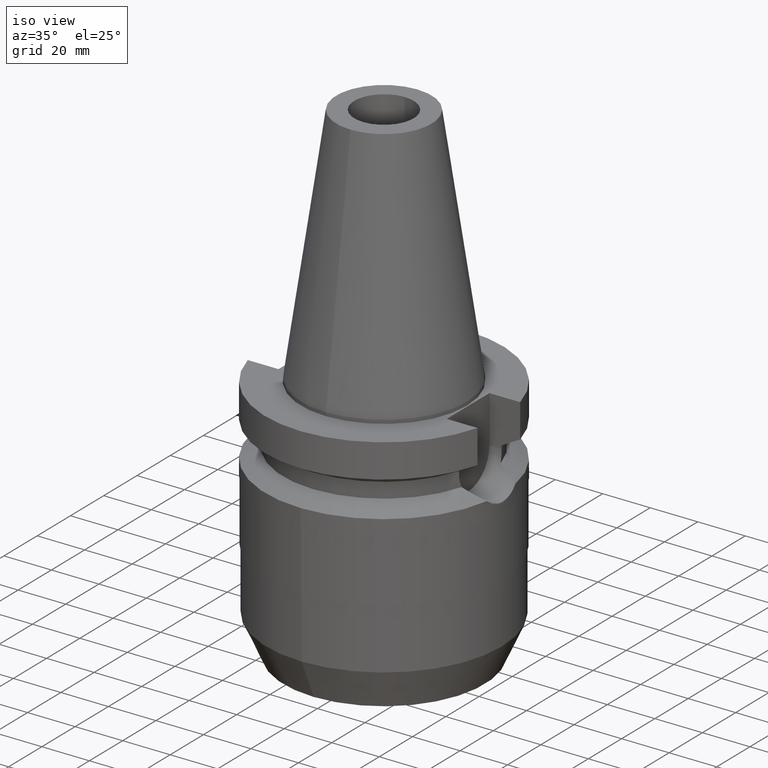
[diagram: clean part render]
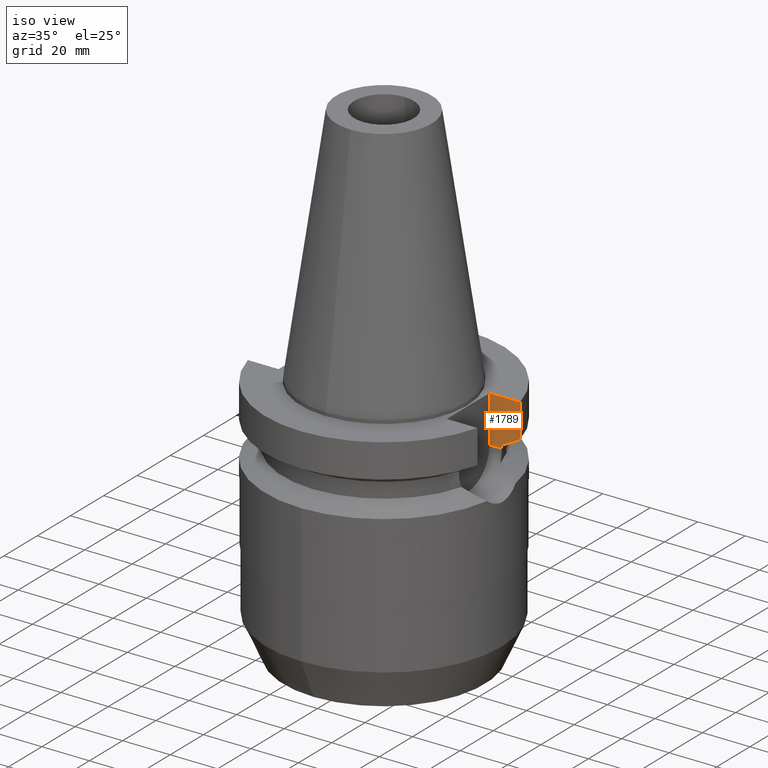
[diagram: same view with one face highlighted and labeled with its STEP entity id]
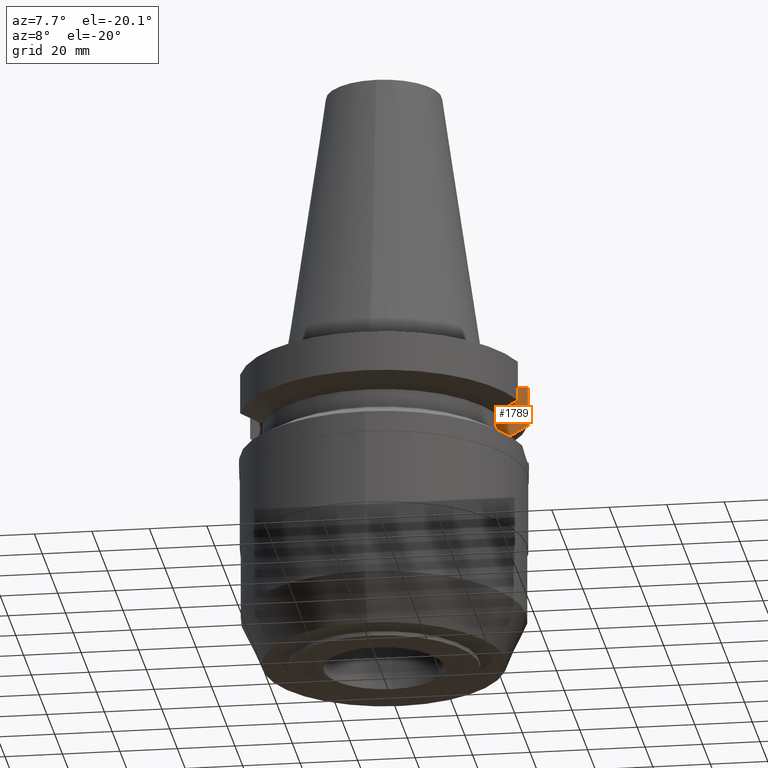
[diagram: same view with one face highlighted and labeled with its STEP entity id]
A machine part, iso view. The second image highlights one B-rep face of the part: STEP entity #1789.
A second angle (auxiliary view) of the same face is appended — the face is thin or edge-on in the first view.
In plain terms, the highlighted planar face has unit normal (0, 1, 0).
Its self-contained STEP definition (entity closure, byte-faithful):
#482=DIRECTION('',(1.E0,-3.336643826790E-14,0.E0));
#483=VECTOR('',#482,5.110831884819E0);
#484=CARTESIAN_POINT('',(3.54E1,1.285E1,-2.115E1));
#485=LINE('',#484,#483);
#650=DIRECTION('',(9.467253418202E-7,-2.984643083131E-6,9.999999999951E-1));
#651=VECTOR('',#650,1.157154240664E0);
#652=CARTESIAN_POINT('',(4.051083188482E1,1.285E1,-2.115E1));
#653=LINE('',#652,#651);
#664=DIRECTION('',(1.E0,0.E0,0.E0));
#665=VECTOR('',#664,1.292057015392E1);
#666=CARTESIAN_POINT('',(3.54E1,1.285E1,-1.5E0));
#667=LINE('',#666,#665);
#671=CARTESIAN_POINT('',(4.832056912893E1,1.285000385432E1,-1.566265770903E1));
#672=CARTESIAN_POINT('',(4.745408731076E1,1.285000385432E1,-1.614611803981E1));
#673=CARTESIAN_POINT('',(4.572064990177E1,1.284999774082E1,-1.711204784283E1));
#674=CARTESIAN_POINT('',(4.311729580085E1,1.285000212563E1,-1.855526397806E1));
#675=CARTESIAN_POINT('',(4.138011681530E1,1.284999654631E1,-1.951445449246E1));
#676=CARTESIAN_POINT('',(4.051083298033E1,1.284999654631E1,-1.999284575934E1));
#681=DIRECTION('',(0.E0,0.E0,-1.E0));
#682=VECTOR('',#681,1.965E1);
#683=CARTESIAN_POINT('',(3.54E1,1.285E1,-1.5E0));
#684=LINE('',#683,#682);
#973=DIRECTION('',(7.237268249751E-8,-2.721468467459E-7,1.E0));
#974=VECTOR('',#973,1.416265770903E1);
#975=CARTESIAN_POINT('',(4.832056912893E1,1.285000385432E1,-1.566265770903E1));
#976=LINE('',#975,#974);
#1145=CARTESIAN_POINT('',(3.54E1,1.285E1,-2.115E1));
#1146=VERTEX_POINT('',#1145);
#1147=CARTESIAN_POINT('',(4.051083188482E1,1.285E1,-2.115E1));
#1148=VERTEX_POINT('',#1147);
#1173=CARTESIAN_POINT('',(4.051083298033E1,1.284999654631E1,-1.999284575934E1));
#1174=VERTEX_POINT('',#1173);
#1190=CARTESIAN_POINT('',(4.832057015392E1,1.285E1,-1.5E0));
#1192=VERTEX_POINT('',#1190);
#1193=CARTESIAN_POINT('',(3.54E1,1.285E1,-1.5E0));
#1194=VERTEX_POINT('',#1193);
#1218=VERTEX_POINT('',#671);
#1772=CARTESIAN_POINT('',(3.54E1,1.285E1,-2.115E1));
#1773=DIRECTION('',(0.E0,1.E0,0.E0));
#1774=DIRECTION('',(0.E0,0.E0,1.E0));
#1775=AXIS2_PLACEMENT_3D('',#1772,#1773,#1774);
#1776=PLANE('',#1775);
#1777=ORIENTED_EDGE('',*,*,#1761,.F.);
#1778=ORIENTED_EDGE('',*,*,#1669,.F.);
#1780=ORIENTED_EDGE('',*,*,#1779,.F.);
#1782=ORIENTED_EDGE('',*,*,#1781,.T.);
#1784=ORIENTED_EDGE('',*,*,#1783,.F.);
#1786=ORIENTED_EDGE('',*,*,#1785,.T.);
#1787=EDGE_LOOP('',(#1777,#1778,#1780,#1782,#1784,#1786));
#1788=FACE_OUTER_BOUND('',#1787,.F.);
#677=B_SPLINE_CURVE_WITH_KNOTS('',3,(#671,#672,#673,#674,#675,#676),
.UNSPECIFIED.,.F.,.F.,(4,1,1,4),(0.E0,3.333333333333E-1,6.666666666667E-1,1.E0),
.UNSPECIFIED.);
#1669=EDGE_CURVE('',#1146,#1148,#485,.T.);
#1761=EDGE_CURVE('',#1148,#1174,#653,.T.);
#1779=EDGE_CURVE('',#1194,#1146,#684,.T.);
#1781=EDGE_CURVE('',#1194,#1192,#667,.T.);
#1783=EDGE_CURVE('',#1218,#1192,#976,.T.);
#1785=EDGE_CURVE('',#1218,#1174,#677,.T.);
#1789=ADVANCED_FACE('',(#1788),#1776,.F.);